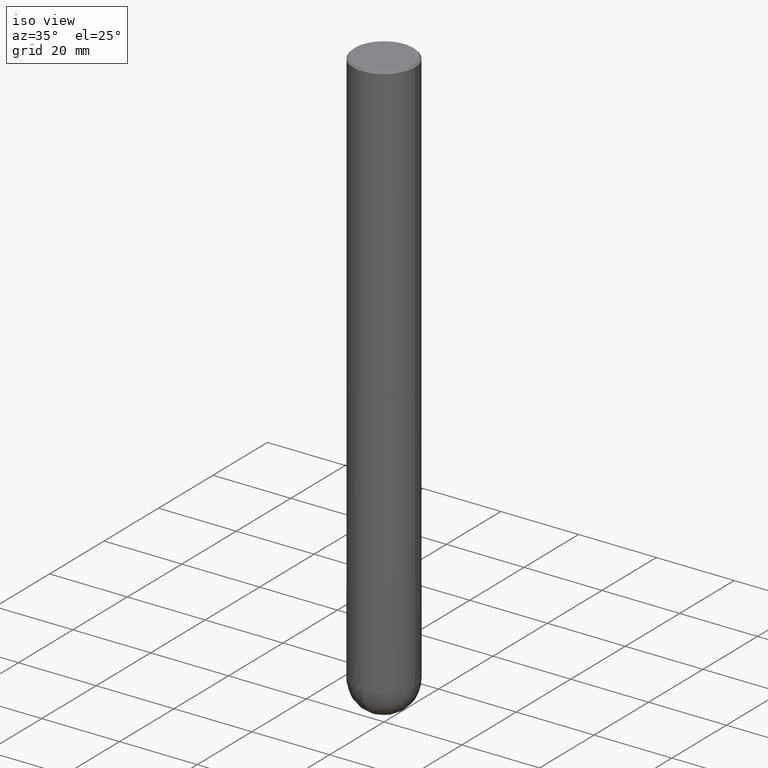
[diagram: clean part render]
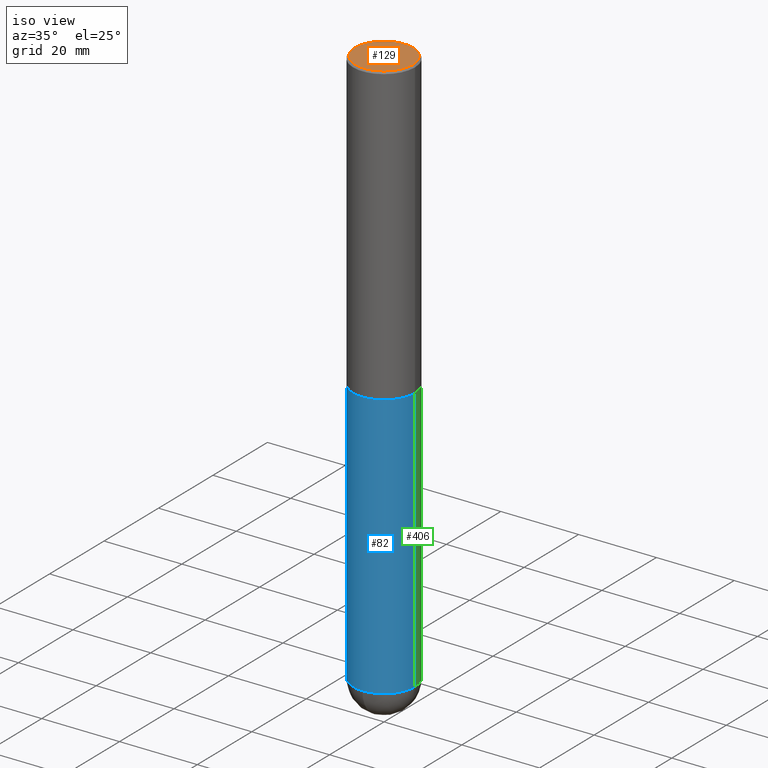
[diagram: same view with three faces highlighted in distinct colors, each labeled with its STEP entity id]
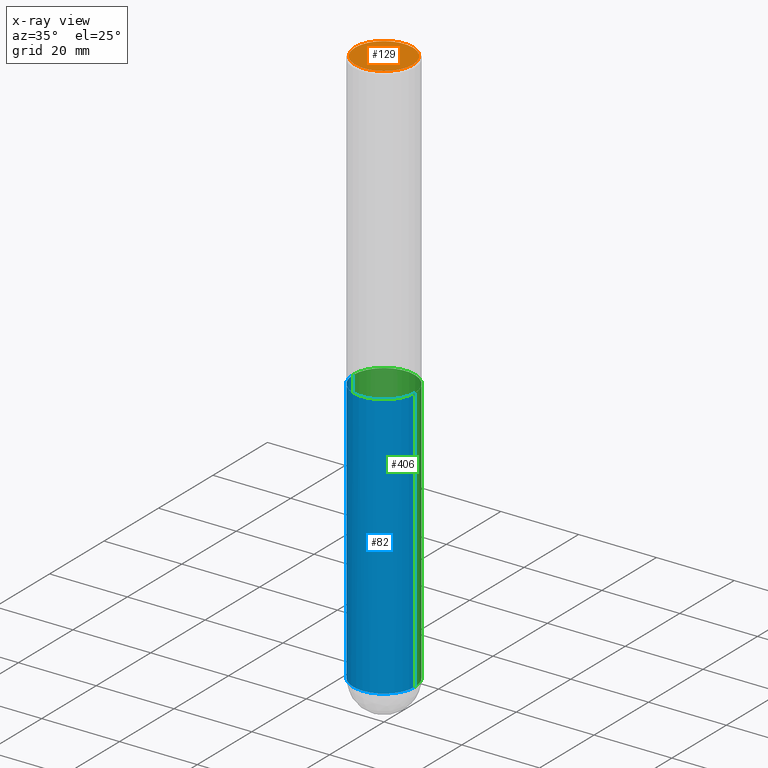
[diagram: x-ray of the same camera — body ghosted, the three highlighted faces saturated]
A machine part, iso view with three faces highlighted in distinct colors.
The next image is the same camera in x-ray (body ghosted, the three faces saturated) — at least one of them is partly hidden behind the body in this view.
Their STEP definitions:

[orange] entity #129 — the highlighted planar face has unit normal (0, -0, -1).
#62 = CARTESIAN_POINT ( 'NONE',  ( 2.042516583223233723E-15, 0.2925000000000001488, -1.104494285168578534E-15 ) ) ;
#71 = AXIS2_PLACEMENT_3D ( 'NONE', #266, #293, #241 ) ;
#84 = EDGE_LOOP ( 'NONE', ( #400, #302 ) ) ;
#95 = FACE_OUTER_BOUND ( 'NONE', #84, .T. ) ;
#99 = AXIS2_PLACEMENT_3D ( 'NONE', #62, #218, #320 ) ;
#105 = CARTESIAN_POINT ( 'NONE',  ( -0.2925000000000001488, 2.077431396611664583E-15, -1.664719871139304458E-16 ) ) ;
#129 = ADVANCED_FACE ( 'NONE', ( #95 ), #385, .F. ) ;
#174 = VERTEX_POINT ( 'NONE', #181 ) ;
#181 = CARTESIAN_POINT ( 'NONE',  ( 0.2925000000000001488, -2.110215457714320720E-15, -1.664719871139015045E-16 ) ) ;
#218 = DIRECTION ( 'NONE',  ( 2.438088387897960049E-29, -3.491481338843145188E-15, -1.000000000000000000 ) ) ;
#233 = CARTESIAN_POINT ( 'NONE',  ( 4.071020515907357082E-45, -5.812338364483744108E-31, -1.664719871139160491E-16 ) ) ;
#241 = DIRECTION ( 'NONE',  ( 1.000000000000000000, -6.982962677686266711E-15, 4.873475059489873974E-29 ) ) ;
#256 = AXIS2_PLACEMENT_3D ( 'NONE', #233, #296, #270 ) ;
#266 = CARTESIAN_POINT ( 'NONE',  ( 4.071020515907357082E-45, -5.812338364483744108E-31, -1.664719871139160491E-16 ) ) ;
#270 = DIRECTION ( 'NONE',  ( 1.000000000000000000, -6.982962677686266711E-15, 4.873475059489873974E-29 ) ) ;
#290 = EDGE_CURVE ( 'NONE', #313, #174, #383, .T. ) ;
#293 = DIRECTION ( 'NONE',  ( -2.445468806185136597E-29, 3.491481338843145583E-15, 1.000000000000000000 ) ) ;
#296 = DIRECTION ( 'NONE',  ( -2.445468806185136597E-29, 3.491481338843145583E-15, 1.000000000000000000 ) ) ;
#302 = ORIENTED_EDGE ( 'NONE', *, *, #332, .T. ) ;
#313 = VERTEX_POINT ( 'NONE', #105 ) ;
#319 = CIRCLE ( 'NONE', #256, 0.2925000000000001488 ) ;
#320 = DIRECTION ( 'NONE',  ( -1.000000000000000000, 6.982962677686265922E-15, -4.876176775795935793E-29 ) ) ;
#332 = EDGE_CURVE ( 'NONE', #174, #313, #319, .T. ) ;
#383 = CIRCLE ( 'NONE', #71, 0.2925000000000001488 ) ;
#385 = PLANE ( 'NONE',  #99 ) ;
#400 = ORIENTED_EDGE ( 'NONE', *, *, #290, .T. ) ;

[blue] entity #82 — the highlighted cylindrical surface (partial cylindrical patch) has radius 7.9375 mm, axis along (-0, 0, 1).
#3 = AXIS2_PLACEMENT_3D ( 'NONE', #399, #255, #392 ) ;
#8 = EDGE_CURVE ( 'NONE', #54, #75, #279, .T. ) ;
#13 = CARTESIAN_POINT ( 'NONE',  ( -2.220446049250173452E-15, -0.3125000000000198175, -5.687500000000000888 ) ) ;
#15 = CARTESIAN_POINT ( 'NONE',  ( 0.3125000000000000000, -1.265661985330639628E-14, -3.000000000000000444 ) ) ;
#22 = LINE ( 'NONE', #58, #127 ) ;
#31 = CYLINDRICAL_SURFACE ( 'NONE', #253, 0.3125000000000000000 ) ;
#42 = DIRECTION ( 'NONE',  ( -2.445468806185136877E-29, 3.491481338843145188E-15, 1.000000000000000000 ) ) ;
#48 = VERTEX_POINT ( 'NONE', #13 ) ;
#54 = VERTEX_POINT ( 'NONE', #231 ) ;
#58 = CARTESIAN_POINT ( 'NONE',  ( -0.3125000000000000000, 2.220446049250313081E-15, -1.537167215704658232E-29 ) ) ;
#61 = EDGE_CURVE ( 'NONE', #359, #48, #225, .T. ) ;
#75 = VERTEX_POINT ( 'NONE', #15 ) ;
#80 = DIRECTION ( 'NONE',  ( -2.445468806185136597E-29, 3.491481338843145583E-15, 1.000000000000000000 ) ) ;
#82 = ADVANCED_FACE ( 'NONE', ( #131 ), #31, .T. ) ;
#87 = DIRECTION ( 'NONE',  ( -2.445468806185136597E-29, 3.491481338843145583E-15, 1.000000000000000000 ) ) ;
#112 = CARTESIAN_POINT ( 'NONE',  ( 1.390860383517796888E-28, -1.985780011467040063E-14, -5.687500000000001776 ) ) ;
#114 = CARTESIAN_POINT ( 'NONE',  ( 0.3125000000000000000, -1.734829790237687605E-14, -5.687500000000001776 ) ) ;
#117 = DIRECTION ( 'NONE',  ( -2.445468806185136597E-29, 3.491481338843145583E-15, 1.000000000000000000 ) ) ;
#127 = VECTOR ( 'NONE', #168, 39.37007874015748143 ) ;
#131 = FACE_OUTER_BOUND ( 'NONE', #140, .T. ) ;
#133 = ORIENTED_EDGE ( 'NONE', *, *, #322, .T. ) ;
#140 = EDGE_LOOP ( 'NONE', ( #401, #291, #133, #238, #369 ) ) ;
#153 = EDGE_CURVE ( 'NONE', #360, #75, #353, .T. ) ;
#156 = AXIS2_PLACEMENT_3D ( 'NONE', #237, #80, #258 ) ;
#168 = DIRECTION ( 'NONE',  ( -2.445468806185136877E-29, 3.491481338843145188E-15, 1.000000000000000000 ) ) ;
#183 = CIRCLE ( 'NONE', #209, 0.3125000000000000000 ) ;
#202 = VECTOR ( 'NONE', #42, 39.37007874015748143 ) ;
#209 = AXIS2_PLACEMENT_3D ( 'NONE', #112, #117, #337 ) ;
#225 = CIRCLE ( 'NONE', #3, 0.3125000000000000000 ) ;
#231 = CARTESIAN_POINT ( 'NONE',  ( -0.3125000000000000000, -1.294567601634960462E-14, -3.000000000000000444 ) ) ;
#237 = CARTESIAN_POINT ( 'NONE',  ( 7.336406418555409790E-29, -1.047444401652943635E-14, -3.000000000000000444 ) ) ;
#238 = ORIENTED_EDGE ( 'NONE', *, *, #153, .T. ) ;
#239 = CARTESIAN_POINT ( 'NONE',  ( -0.3125000000000000000, -1.294567601634960462E-14, -5.687500000000001776 ) ) ;
#244 = CARTESIAN_POINT ( 'NONE',  ( 0.3125000000000000000, -2.182175836776958347E-15, 1.523805242436230075E-29 ) ) ;
#253 = AXIS2_PLACEMENT_3D ( 'NONE', #374, #87, #371 ) ;
#255 = DIRECTION ( 'NONE',  ( -2.445468806185136597E-29, 3.491481338843145583E-15, 1.000000000000000000 ) ) ;
#258 = DIRECTION ( 'NONE',  ( 1.000000000000000000, -6.982962677686269077E-15, 0.000000000000000000 ) ) ;
#279 = CIRCLE ( 'NONE', #156, 0.3125000000000000000 ) ;
#291 = ORIENTED_EDGE ( 'NONE', *, *, #61, .T. ) ;
#322 = EDGE_CURVE ( 'NONE', #48, #360, #183, .T. ) ;
#326 = EDGE_CURVE ( 'NONE', #359, #54, #22, .T. ) ;
#337 = DIRECTION ( 'NONE',  ( 1.000000000000000000, -6.982962677686262766E-15, 0.000000000000000000 ) ) ;
#353 = LINE ( 'NONE', #244, #202 ) ;
#359 = VERTEX_POINT ( 'NONE', #239 ) ;
#360 = VERTEX_POINT ( 'NONE', #114 ) ;
#369 = ORIENTED_EDGE ( 'NONE', *, *, #8, .F. ) ;
#371 = DIRECTION ( 'NONE',  ( 1.000000000000000000, -6.982962677686266711E-15, 4.876176775795936353E-29 ) ) ;
#374 = CARTESIAN_POINT ( 'NONE',  ( 0.000000000000000000, 0.000000000000000000, 0.000000000000000000 ) ) ;
#392 = DIRECTION ( 'NONE',  ( 1.000000000000000000, -6.982962677686262766E-15, 0.000000000000000000 ) ) ;
#399 = CARTESIAN_POINT ( 'NONE',  ( 1.390860383517796888E-28, -1.985780011467040063E-14, -5.687500000000001776 ) ) ;
#401 = ORIENTED_EDGE ( 'NONE', *, *, #326, .F. ) ;

[green] entity #406 — the highlighted cylindrical surface (partial cylindrical patch) has radius 7.9375 mm, axis along (-0, 0, 1).
#15 = CARTESIAN_POINT ( 'NONE',  ( 0.3125000000000000000, -1.265661985330639628E-14, -3.000000000000000444 ) ) ;
#18 = AXIS2_PLACEMENT_3D ( 'NONE', #271, #124, #269 ) ;
#22 = LINE ( 'NONE', #58, #127 ) ;
#23 = EDGE_LOOP ( 'NONE', ( #206, #404, #262, #164, #143 ) ) ;
#41 = CYLINDRICAL_SURFACE ( 'NONE', #57, 0.3125000000000000000 ) ;
#42 = DIRECTION ( 'NONE',  ( -2.445468806185136877E-29, 3.491481338843145188E-15, 1.000000000000000000 ) ) ;
#54 = VERTEX_POINT ( 'NONE', #231 ) ;
#57 = AXIS2_PLACEMENT_3D ( 'NONE', #247, #350, #214 ) ;
#58 = CARTESIAN_POINT ( 'NONE',  ( -0.3125000000000000000, 2.220446049250313081E-15, -1.537167215704658232E-29 ) ) ;
#75 = VERTEX_POINT ( 'NONE', #15 ) ;
#78 = CIRCLE ( 'NONE', #410, 0.3125000000000000000 ) ;
#90 = DIRECTION ( 'NONE',  ( 1.000000000000000000, -6.982962677686269077E-15, 0.000000000000000000 ) ) ;
#114 = CARTESIAN_POINT ( 'NONE',  ( 0.3125000000000000000, -1.734829790237687605E-14, -5.687500000000001776 ) ) ;
#124 = DIRECTION ( 'NONE',  ( -2.445468806185136597E-29, 3.491481338843145583E-15, 1.000000000000000000 ) ) ;
#125 = CARTESIAN_POINT ( 'NONE',  ( 1.390860383517796888E-28, -1.985780011467040063E-14, -5.687500000000001776 ) ) ;
#127 = VECTOR ( 'NONE', #168, 39.37007874015748143 ) ;
#143 = ORIENTED_EDGE ( 'NONE', *, *, #170, .T. ) ;
#146 = DIRECTION ( 'NONE',  ( 1.000000000000000000, -6.982962677686262766E-15, 0.000000000000000000 ) ) ;
#153 = EDGE_CURVE ( 'NONE', #360, #75, #353, .T. ) ;
#160 = DIRECTION ( 'NONE',  ( -2.445468806185136597E-29, 3.491481338843145583E-15, 1.000000000000000000 ) ) ;
#164 = ORIENTED_EDGE ( 'NONE', *, *, #153, .F. ) ;
#168 = DIRECTION ( 'NONE',  ( -2.445468806185136877E-29, 3.491481338843145188E-15, 1.000000000000000000 ) ) ;
#170 = EDGE_CURVE ( 'NONE', #360, #396, #375, .T. ) ;
#180 = EDGE_CURVE ( 'NONE', #396, #359, #274, .T. ) ;
#190 = AXIS2_PLACEMENT_3D ( 'NONE', #125, #160, #146 ) ;
#202 = VECTOR ( 'NONE', #42, 39.37007874015748143 ) ;
#206 = ORIENTED_EDGE ( 'NONE', *, *, #180, .T. ) ;
#214 = DIRECTION ( 'NONE',  ( 1.000000000000000000, -6.982962677686266711E-15, 4.876176775795936353E-29 ) ) ;
#215 = EDGE_CURVE ( 'NONE', #75, #54, #78, .T. ) ;
#216 = FACE_OUTER_BOUND ( 'NONE', #23, .T. ) ;
#231 = CARTESIAN_POINT ( 'NONE',  ( -0.3125000000000000000, -1.294567601634960462E-14, -3.000000000000000444 ) ) ;
#239 = CARTESIAN_POINT ( 'NONE',  ( -0.3125000000000000000, -1.294567601634960462E-14, -5.687500000000001776 ) ) ;
#244 = CARTESIAN_POINT ( 'NONE',  ( 0.3125000000000000000, -2.182175836776958347E-15, 1.523805242436230075E-29 ) ) ;
#247 = CARTESIAN_POINT ( 'NONE',  ( 0.000000000000000000, 0.000000000000000000, 0.000000000000000000 ) ) ;
#262 = ORIENTED_EDGE ( 'NONE', *, *, #215, .F. ) ;
#269 = DIRECTION ( 'NONE',  ( 1.000000000000000000, -6.982962677686262766E-15, 0.000000000000000000 ) ) ;
#271 = CARTESIAN_POINT ( 'NONE',  ( 1.390860383517796888E-28, -1.985780011467040063E-14, -5.687500000000001776 ) ) ;
#274 = CIRCLE ( 'NONE', #18, 0.3125000000000000000 ) ;
#305 = DIRECTION ( 'NONE',  ( -2.445468806185136597E-29, 3.491481338843145583E-15, 1.000000000000000000 ) ) ;
#326 = EDGE_CURVE ( 'NONE', #359, #54, #22, .T. ) ;
#349 = CARTESIAN_POINT ( 'NONE',  ( 2.182175836777093637E-15, 0.3124999999999796829, -5.687500000000003553 ) ) ;
#350 = DIRECTION ( 'NONE',  ( -2.445468806185136597E-29, 3.491481338843145583E-15, 1.000000000000000000 ) ) ;
#353 = LINE ( 'NONE', #244, #202 ) ;
#359 = VERTEX_POINT ( 'NONE', #239 ) ;
#360 = VERTEX_POINT ( 'NONE', #114 ) ;
#375 = CIRCLE ( 'NONE', #190, 0.3125000000000000000 ) ;
#388 = CARTESIAN_POINT ( 'NONE',  ( 7.336406418555409790E-29, -1.047444401652943635E-14, -3.000000000000000444 ) ) ;
#396 = VERTEX_POINT ( 'NONE', #349 ) ;
#404 = ORIENTED_EDGE ( 'NONE', *, *, #326, .T. ) ;
#406 = ADVANCED_FACE ( 'NONE', ( #216 ), #41, .T. ) ;
#410 = AXIS2_PLACEMENT_3D ( 'NONE', #388, #305, #90 ) ;